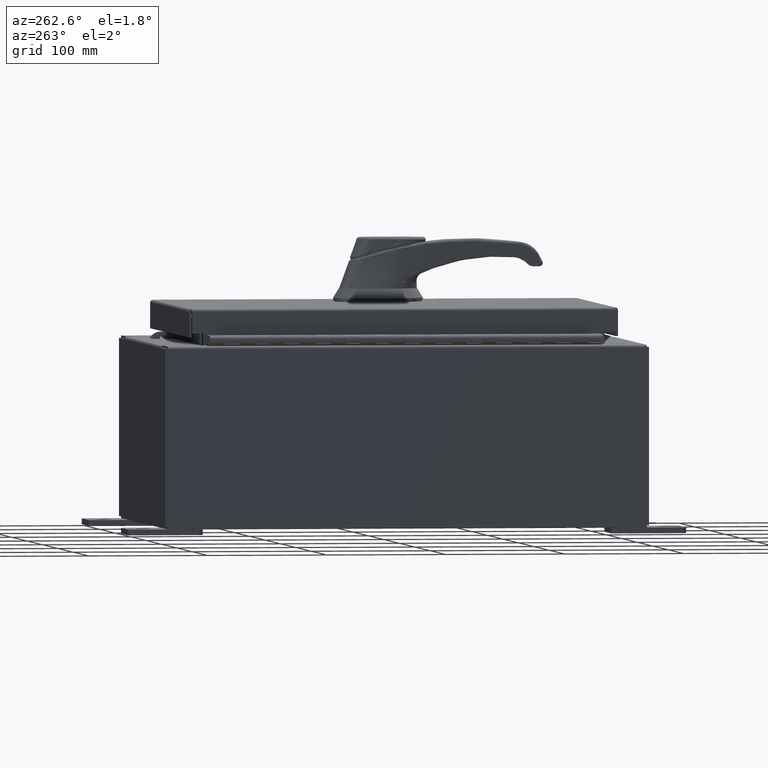
[diagram: clean part render]
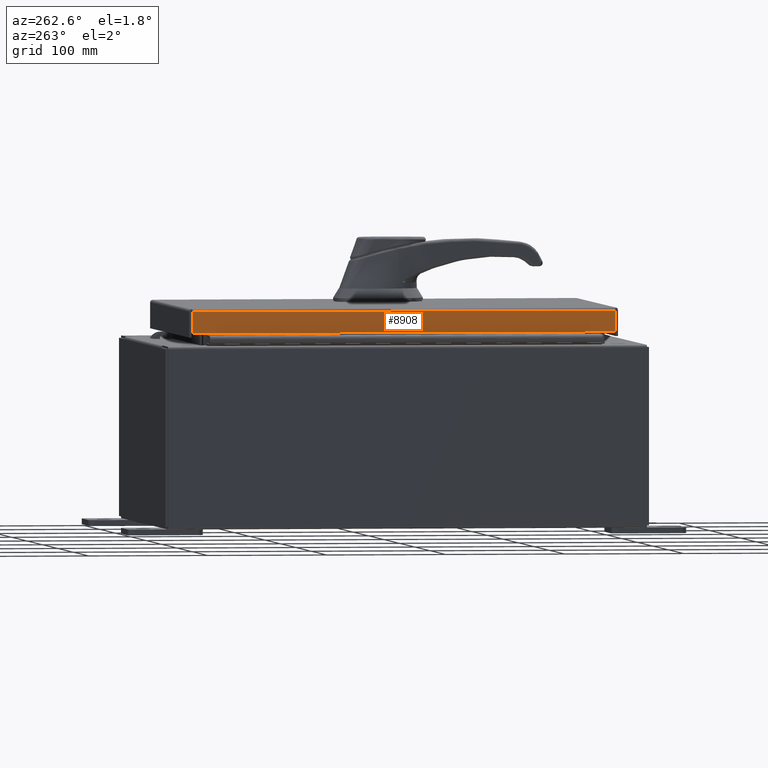
[diagram: same view with one face highlighted and labeled with its STEP entity id]
A machine part, auxiliary view. The second image highlights one B-rep face of the part: STEP entity #8908.
In plain terms, the highlighted planar face has unit normal (1, 0, -0).
Its self-contained STEP definition (entity closure, byte-faithful):
#4217 = VECTOR ( 'NONE', #41834, 39.37007874015748100 ) ;
#7628 = CARTESIAN_POINT ( 'NONE',  ( -5.078000000000003000, -7.005157864376264400, -0.7949999999999996000 ) ) ;
#8908 = ADVANCED_FACE ( 'NONE', ( #45097 ), #48446, .F. ) ;
#15921 = CARTESIAN_POINT ( 'NONE',  ( -5.078000000000003000, 7.005157864376276000, -0.7949999999999979300 ) ) ;
#17663 = ORIENTED_EDGE ( 'NONE', *, *, #36463, .F. ) ;
#21011 = CARTESIAN_POINT ( 'NONE',  ( -5.078000000000001200, -7.005157864376269700, -0.07469999999999976700 ) ) ;
#22098 = EDGE_LOOP ( 'NONE', ( #62525, #60424, #71192, #17663 ) ) ;
#24146 = DIRECTION ( 'NONE',  ( -3.034122441942816500E-015, 0.0000000000000000000, -1.000000000000000000 ) ) ;
#26012 = LINE ( 'NONE', #82152, #4217 ) ;
#27888 = AXIS2_PLACEMENT_3D ( 'NONE', #40233, #73086, #24146 ) ;
#36069 = LINE ( 'NONE', #97750, #93564 ) ;
#36463 = EDGE_CURVE ( 'NONE', #49545, #63671, #89105, .T. ) ;
#40233 = CARTESIAN_POINT ( 'NONE',  ( -5.078000000000001200, -1.928299580014057100E-030, 1.566808741619720900E-014 ) ) ;
#41834 = DIRECTION ( 'NONE',  ( 3.797360338743712300E-031, -1.000000000000000000, -1.119390514946887900E-045 ) ) ;
#44779 = DIRECTION ( 'NONE',  ( 4.379057701015054300E-047, 1.000000000000000000, 1.251551449028595500E-016 ) ) ;
#45097 = FACE_OUTER_BOUND ( 'NONE', #22098, .T. ) ;
#48446 = PLANE ( 'NONE',  #27888 ) ;
#48800 = DIRECTION ( 'NONE',  ( -3.034122441942816500E-015, 6.982962677686265900E-015, -1.000000000000000000 ) ) ;
#49545 = VERTEX_POINT ( 'NONE', #61749 ) ;
#53544 = DIRECTION ( 'NONE',  ( -3.034122441942816500E-015, 6.982962677686265900E-015, -1.000000000000000000 ) ) ;
#54172 = EDGE_CURVE ( 'NONE', #63671, #91285, #60876, .T. ) ;
#60424 = ORIENTED_EDGE ( 'NONE', *, *, #97663, .T. ) ;
#60876 = LINE ( 'NONE', #69070, #77467 ) ;
#61749 = CARTESIAN_POINT ( 'NONE',  ( -5.078000000000001200, -7.005157864376269700, -0.08770000000000007000 ) ) ;
#62525 = ORIENTED_EDGE ( 'NONE', *, *, #76996, .F. ) ;
#63671 = VERTEX_POINT ( 'NONE', #7628 ) ;
#66802 = VERTEX_POINT ( 'NONE', #84321 ) ;
#69070 = CARTESIAN_POINT ( 'NONE',  ( -5.078000000000003000, -7.094000000000000300, -0.7949999999999997100 ) ) ;
#71192 = ORIENTED_EDGE ( 'NONE', *, *, #54172, .F. ) ;
#73086 = DIRECTION ( 'NONE',  ( 1.000000000000000000, 3.797360338743711400E-031, -3.034122441942816500E-015 ) ) ;
#76996 = EDGE_CURVE ( 'NONE', #66802, #49545, #26012, .T. ) ;
#77467 = VECTOR ( 'NONE', #44779, 39.37007874015748100 ) ;
#82152 = CARTESIAN_POINT ( 'NONE',  ( -5.078000000000001200, -7.094000000000000300, -0.08770000000000004200 ) ) ;
#84321 = CARTESIAN_POINT ( 'NONE',  ( -5.078000000000001200, 7.005157864376269700, -0.08770000000000004200 ) ) ;
#89105 = LINE ( 'NONE', #21011, #91666 ) ;
#91285 = VERTEX_POINT ( 'NONE', #15921 ) ;
#91666 = VECTOR ( 'NONE', #53544, 39.37007874015748100 ) ;
#93564 = VECTOR ( 'NONE', #48800, 39.37007874015748100 ) ;
#97663 = EDGE_CURVE ( 'NONE', #66802, #91285, #36069, .T. ) ;
#97750 = CARTESIAN_POINT ( 'NONE',  ( -5.078000000000001200, 7.005157864376269700, 6.458484333443713300E-014 ) ) ;